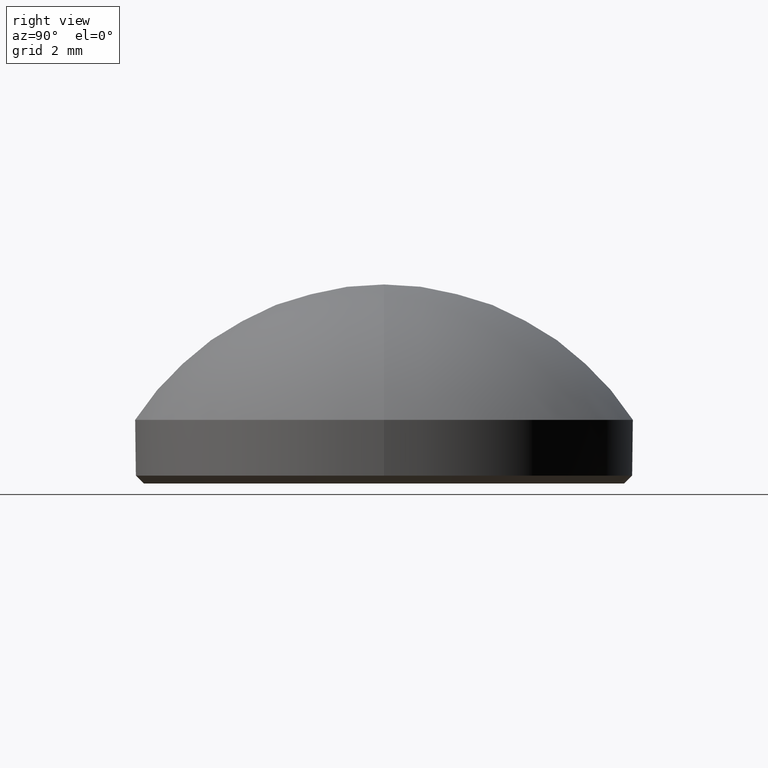
[diagram: clean part render]
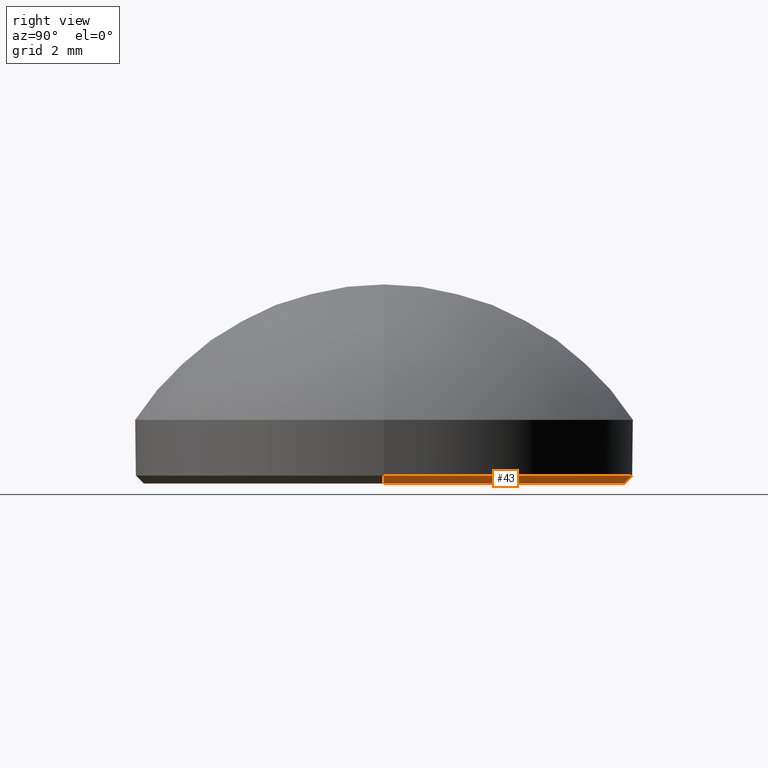
[diagram: same view with one face highlighted and labeled with its STEP entity id]
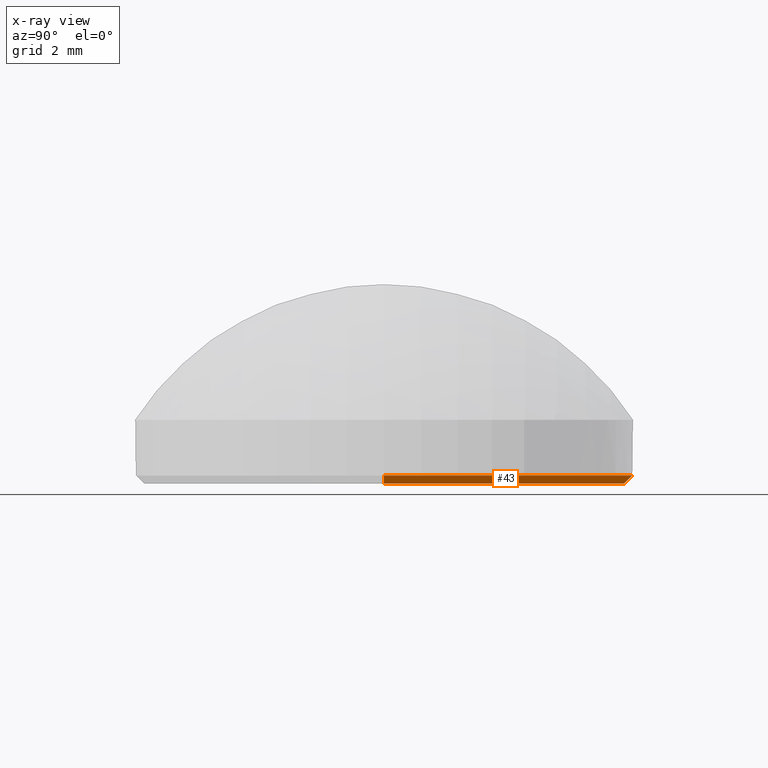
[diagram: x-ray of the same camera — body ghosted, the highlighted face saturated]
A machine part, right view. The second image highlights one B-rep face of the part: STEP entity #43.
The next image is the same camera in x-ray: the body ghosted, the highlighted face saturated — about 0% of this face is hidden behind the body in this view.
In plain terms, the highlighted conical surface has half-angle 45 deg.
Its self-contained STEP definition (entity closure, byte-faithful):
#2 = EDGE_CURVE ( 'NONE', #13, #117, #185, .T. ) ;
#8 = AXIS2_PLACEMENT_3D ( 'NONE', #193, #196, #59 ) ;
#13 = VERTEX_POINT ( 'NONE', #28 ) ;
#14 = CIRCLE ( 'NONE', #142, 6.250000000000000000 ) ;
#28 = CARTESIAN_POINT ( 'NONE',  ( -6.050000000000000711, 7.531577814756223050E-16, 0.000000000000000000 ) ) ;
#29 = DIRECTION ( 'NONE',  ( 1.000000000000000000, 0.000000000000000000, 0.000000000000000000 ) ) ;
#39 = DIRECTION ( 'NONE',  ( 1.000000000000000000, 0.000000000000000000, 0.000000000000000000 ) ) ;
#43 = ADVANCED_FACE ( 'NONE', ( #210 ), #74, .T. ) ;
#53 = ORIENTED_EDGE ( 'NONE', *, *, #141, .F. ) ;
#55 = EDGE_CURVE ( 'NONE', #13, #98, #60, .T. ) ;
#58 = CARTESIAN_POINT ( 'NONE',  ( 0.000000000000000000, 0.000000000000000000, 0.000000000000000000 ) ) ;
#59 = DIRECTION ( 'NONE',  ( 1.000000000000000000, 0.000000000000000000, 0.000000000000000000 ) ) ;
#60 = CIRCLE ( 'NONE', #134, 6.050000000000000711 ) ;
#74 = CONICAL_SURFACE ( 'NONE', #8, 6.250000000000000000, 0.7853981633974504994 ) ;
#78 = ORIENTED_EDGE ( 'NONE', *, *, #2, .T. ) ;
#79 = EDGE_CURVE ( 'NONE', #96, #117, #14, .T. ) ;
#91 = ORIENTED_EDGE ( 'NONE', *, *, #79, .F. ) ;
#96 = VERTEX_POINT ( 'NONE', #157 ) ;
#98 = VERTEX_POINT ( 'NONE', #139 ) ;
#115 = CARTESIAN_POINT ( 'NONE',  ( 0.000000000000000000, 0.000000000000000000, 0.1999999999999987899 ) ) ;
#117 = VERTEX_POINT ( 'NONE', #170 ) ;
#120 = VECTOR ( 'NONE', #199, 1000.000000000000114 ) ;
#131 = ORIENTED_EDGE ( 'NONE', *, *, #55, .F. ) ;
#132 = DIRECTION ( 'NONE',  ( -0.000000000000000000, -0.000000000000000000, -1.000000000000000000 ) ) ;
#134 = AXIS2_PLACEMENT_3D ( 'NONE', #58, #132, #39 ) ;
#139 = CARTESIAN_POINT ( 'NONE',  ( 6.050000000000000711, 0.000000000000000000, 0.000000000000000000 ) ) ;
#140 = LINE ( 'NONE', #191, #120 ) ;
#141 = EDGE_CURVE ( 'NONE', #98, #96, #140, .T. ) ;
#142 = AXIS2_PLACEMENT_3D ( 'NONE', #115, #184, #29 ) ;
#150 = CARTESIAN_POINT ( 'NONE',  ( -6.250000000000000000, 7.654042494670957606E-16, 0.1999999999999987899 ) ) ;
#151 = DIRECTION ( 'NONE',  ( -0.7071067811865490160, 8.659560562354953812E-17, 0.7071067811865460184 ) ) ;
#154 = VECTOR ( 'NONE', #151, 1000.000000000000114 ) ;
#157 = CARTESIAN_POINT ( 'NONE',  ( 6.250000000000000000, 7.654042494670957606E-16, 0.1999999999999987899 ) ) ;
#164 = EDGE_LOOP ( 'NONE', ( #131, #78, #91, #53 ) ) ;
#170 = CARTESIAN_POINT ( 'NONE',  ( -6.250000000000000000, 0.000000000000000000, 0.1999999999999987899 ) ) ;
#184 = DIRECTION ( 'NONE',  ( -0.000000000000000000, -0.000000000000000000, 1.000000000000000000 ) ) ;
#185 = LINE ( 'NONE', #150, #154 ) ;
#191 = CARTESIAN_POINT ( 'NONE',  ( 6.250000000000000000, 0.000000000000000000, 0.1999999999999987899 ) ) ;
#193 = CARTESIAN_POINT ( 'NONE',  ( 0.000000000000000000, 0.000000000000000000, 0.1999999999999987899 ) ) ;
#196 = DIRECTION ( 'NONE',  ( -0.000000000000000000, -0.000000000000000000, 1.000000000000000000 ) ) ;
#199 = DIRECTION ( 'NONE',  ( 0.7071067811865490160, 0.000000000000000000, 0.7071067811865460184 ) ) ;
#210 = FACE_OUTER_BOUND ( 'NONE', #164, .T. ) ;